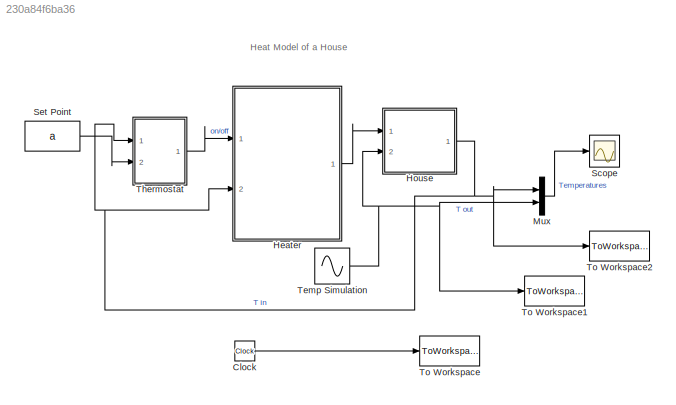
MODEL slx_230a84f6ba36
KIND model
CONFIG AbsTol = 1e-6
CONFIG FixedStep = 1
CONFIG MaxStep = auto
CONFIG MinStep = auto
CONFIG RelTol = 1e-3
CONFIG SampleTimeConstraint = Unconstrained
CONFIG Solver = ode45
CONFIG SolverMode = SingleTasking
CONFIG SolverName = ode45
CONFIG StartTime = 0.0
CONFIG StopTime = 48
WORKSPACE source: MATLAB code (in-file)
WORKSPACE code: sldemo_househeat_data
BLOCK [Clock] Clock
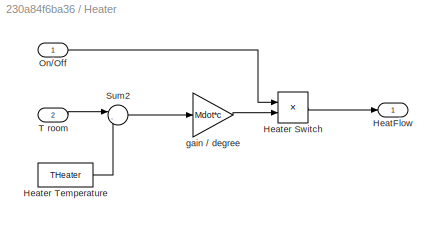
BLOCK [SubSystem] Heater
  Ports = [2, 1]
  RequestExecContextInheritance = off
  Variant = off
BLOCK [Outport] Heater/HeatFlow
  IconDisplay = Port number
BLOCK [Product] Heater/Heater Switch
  InputSameDT = off
  OutDataTypeStr = Inherit: Inherit via internal rule
  Ports = [2, 1]
  SaturateOnIntegerOverflow = off
BLOCK [Constant] Heater/Heater Temperature
  Value = THeater
BLOCK [Inport] Heater/On//Off
  IconDisplay = Port number
BLOCK [Sum] Heater/Sum2
  IconShape = round
  InputSameDT = off
  Inputs = |-+
  OutDataTypeStr = Inherit: Inherit via internal rule
  Ports = [2, 1]
  SaturateOnIntegerOverflow = off
BLOCK [Inport] Heater/T room
  IconDisplay = Port number
  Port = 2
BLOCK [Gain] Heater/gain // degree
  Gain = Mdot*c
  OutDataTypeStr = Inherit: Inherit via internal rule
  ParamDataTypeStr = Inherit: Inherit via internal rule
  SaturateOnIntegerOverflow = off
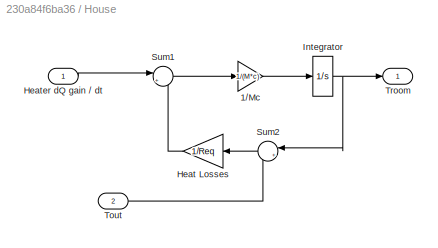
BLOCK [SubSystem] House
  Ports = [2, 1]
  RequestExecContextInheritance = off
  Variant = off
BLOCK [Gain] House/1//Mc
  Gain = 1/(M*c)
BLOCK [Gain] House/Heat Losses
  Gain = 1/Req
BLOCK [Inport] House/Heater dQ gain // dt
  IconDisplay = Port number
BLOCK [Integrator] House/Integrator
  InitialCondition = TinIC
  Ports = [1, 1]
BLOCK [Sum] House/Sum1
  IconShape = round
  Inputs = |+-
  Ports = [2, 1]
BLOCK [Sum] House/Sum2
  IconShape = round
  Inputs = |+-
  Ports = [2, 1]
BLOCK [Inport] House/Tout
  IconDisplay = Port number
  Port = 2
BLOCK [Outport] House/Troom
  IconDisplay = Port number
  InitialOutput = 0
BLOCK [Mux] Mux
  DisplayOption = bar
  Inputs = 2
  Ports = [2, 1]
BLOCK [Scope] Scope
  Ports = [1]
  ScopeSpecificationString = Simulink.scopes.TimeScopeBlockCfg('CurrentConfiguration', extmgr.ConfigurationSet(extmgr.Configuration('Core','General UI',true,'FigureColor',[1 1 1]),extmgr.Configuration('Core','Source UI',true),extmgr.Configuration('Sources','WiredSimulink',true),extmgr.Configuration('Visuals','Time Domain',true,'SerializedDisplays',{struct('MinYLimReal','7.50177','MaxYLimReal','32.48508','YLabelReal','','MinYL...<+1616ch>
BLOCK [Constant] Set Point
  Value = a
BLOCK [Sin] Temp Simulation
  Amplitude = 10
  Bias = b
  Frequency = 2*pi/24
  Ports = [0, 1]
  SampleTime = 0
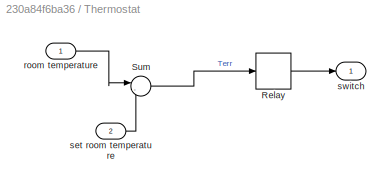
BLOCK [SubSystem] Thermostat
  Ports = [2, 1]
  RequestExecContextInheritance = off
  Variant = off
BLOCK [Relay] Thermostat/Relay
  OffSwitchValue = -2
  OnSwitchValue = 2
BLOCK [Sum] Thermostat/Sum
  IconShape = round
  InputSameDT = off
  Inputs = |-+
  OutDataTypeStr = Inherit: Inherit via internal rule
  Ports = [2, 1]
  SaturateOnIntegerOverflow = off
BLOCK [Inport] Thermostat/room temperature
  IconDisplay = Port number
BLOCK [Inport] Thermostat/set room temperature
  IconDisplay = Port number
  Port = 2
BLOCK [Outport] Thermostat/switch
  IconDisplay = Port number
  InitialOutput = 0
BLOCK [ToWorkspace] To Workspace
  FixptAsFi = on
  MaxDataPoints = inf
  Ports = [1]
  SampleTime = -1
  Save2DSignal = 3-D array (concatenate along third dimension)
  VariableName = t
BLOCK [ToWorkspace] To Workspace1
  FixptAsFi = on
  MaxDataPoints = inf
  Ports = [1]
  SampleTime = -1
  Save2DSignal = 3-D array (concatenate along third dimension)
  VariableName = y1
BLOCK [ToWorkspace] To Workspace2
  FixptAsFi = on
  MaxDataPoints = inf
  Ports = [1]
  SampleTime = -1
  Save2DSignal = 3-D array (concatenate along third dimension)
  VariableName = y
ANNOTATION (root): Heat Model of a House
LINE Clock:1 -> To Workspace:1
LINE Heater/Heater Switch:1 -> Heater/HeatFlow:1
LINE Heater/Heater Temperature:1 -> Heater/Sum2:2
LINE Heater/On//Off:1 -> Heater/Heater Switch:1
LINE Heater/Sum2:1 -> Heater/gain // degree:1
LINE Heater/T room:1 -> Heater/Sum2:1
LINE Heater/gain // degree:1 -> Heater/Heater Switch:2
LINE Heater:1 -> House:1
LINE House/1//Mc:1 -> House/Integrator:1
LINE House/Heat Losses:1 -> House/Sum1:2
LINE House/Heater dQ gain // dt:1 -> House/Sum1:1
NET House/Integrator:1 -> House/Sum2:1, House/Troom:1
LINE House/Sum1:1 -> House/1//Mc:1
LINE House/Sum2:1 -> House/Heat Losses:1
LINE House/Tout:1 -> House/Sum2:2
NET House:1 -> Heater:2, Mux:1, Thermostat:1, To Workspace2:1
LINE Mux:1 -> Scope:1
LINE Set Point:1 -> Thermostat:2
NET Temp Simulation:1 -> House:2, Mux:2, To Workspace1:1
LINE Thermostat/Relay:1 -> Thermostat/switch:1
LINE Thermostat/Sum:1 -> Thermostat/Relay:1
LINE Thermostat/room temperature:1 -> Thermostat/Sum:1
LINE Thermostat/set room temperature:1 -> Thermostat/Sum:2
LINE Thermostat:1 -> Heater:1
note: NET lines group one-source signal fan-out (src -> all destinations, sorted); 1:1 wires keep LINE
